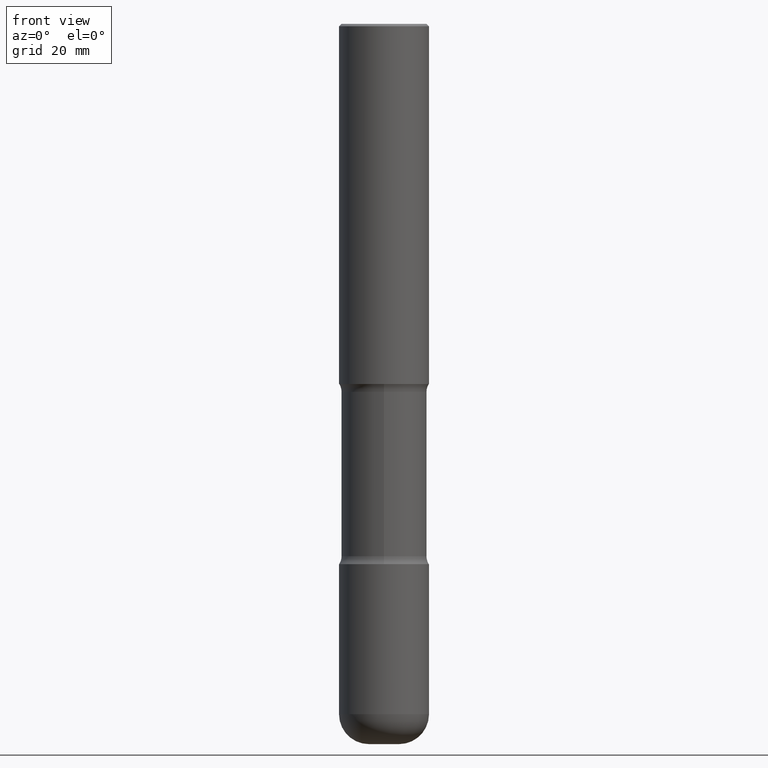
[diagram: clean part render]
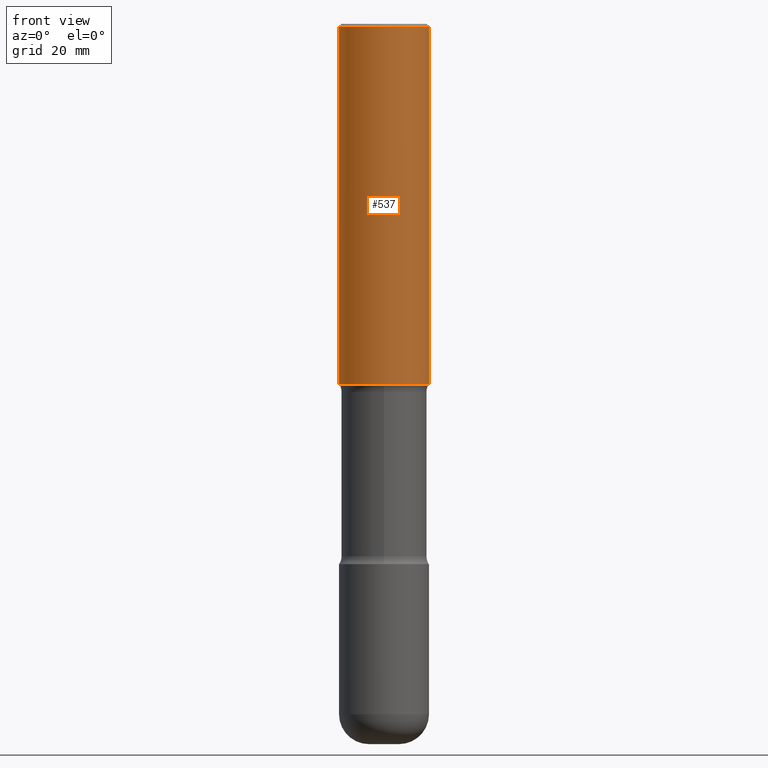
[diagram: same view with one face highlighted and labeled with its STEP entity id]
A machine part, front view. The second image highlights one B-rep face of the part: STEP entity #537.
In plain terms, the highlighted cylindrical surface (partial cylindrical patch) has radius 9.525 mm, axis along (-0, 0, 1).
Its self-contained STEP definition (entity closure, byte-faithful):
#3 = CARTESIAN_POINT ( 'NONE',  ( 4.890937612370289799E-31, -6.982962677686315028E-17, -0.02000000000000006981 ) ) ;
#13 = VERTEX_POINT ( 'NONE', #255 ) ;
#25 = AXIS2_PLACEMENT_3D ( 'NONE', #3, #217, #211 ) ;
#28 = CARTESIAN_POINT ( 'NONE',  ( 7.336406418555407548E-29, -1.047444401652943320E-14, -2.999999999999999112 ) ) ;
#32 = DIRECTION ( 'NONE',  ( 1.000000000000000000, -6.982962677686265922E-15, 0.000000000000000000 ) ) ;
#40 = AXIS2_PLACEMENT_3D ( 'NONE', #28, #501, #32 ) ;
#66 = FACE_OUTER_BOUND ( 'NONE', #238, .T. ) ;
#77 = VECTOR ( 'NONE', #159, 39.37007874015748143 ) ;
#87 = VERTEX_POINT ( 'NONE', #202 ) ;
#112 = EDGE_CURVE ( 'NONE', #13, #87, #530, .T. ) ;
#147 = AXIS2_PLACEMENT_3D ( 'NONE', #456, #504, #406 ) ;
#152 = LINE ( 'NONE', #325, #77 ) ;
#159 = DIRECTION ( 'NONE',  ( -2.445468806185136877E-29, 3.491481338843145188E-15, 1.000000000000000000 ) ) ;
#202 = CARTESIAN_POINT ( 'NONE',  ( 0.3750000000000003886, -1.309305502066178637E-14, -2.999999999999999112 ) ) ;
#211 = DIRECTION ( 'NONE',  ( 1.000000000000000000, -6.982962677686265922E-15, 0.000000000000000000 ) ) ;
#217 = DIRECTION ( 'NONE',  ( -2.445468806185136597E-29, 3.491481338843145583E-15, 1.000000000000000000 ) ) ;
#238 = EDGE_LOOP ( 'NONE', ( #408, #543, #315, #387 ) ) ;
#255 = CARTESIAN_POINT ( 'NONE',  ( -0.3750000000000003886, -2.607601562552767029E-15, -2.999999999999999112 ) ) ;
#263 = EDGE_CURVE ( 'NONE', #13, #340, #511, .T. ) ;
#269 = EDGE_CURVE ( 'NONE', #340, #283, #295, .T. ) ;
#281 = VECTOR ( 'NONE', #308, 39.37007874015748143 ) ;
#283 = VERTEX_POINT ( 'NONE', #555 ) ;
#295 = CIRCLE ( 'NONE', #25, 0.3750000000000001110 ) ;
#308 = DIRECTION ( 'NONE',  ( -2.445468806185136877E-29, 3.491481338843145188E-15, 1.000000000000000000 ) ) ;
#314 = CARTESIAN_POINT ( 'NONE',  ( -0.3750000000000001110, 2.548781377355487113E-15, -0.02000000000000006981 ) ) ;
#315 = ORIENTED_EDGE ( 'NONE', *, *, #526, .T. ) ;
#325 = CARTESIAN_POINT ( 'NONE',  ( 0.3750000000000002220, -2.618611004132351594E-15, 1.828566290923477043E-29 ) ) ;
#340 = VERTEX_POINT ( 'NONE', #314 ) ;
#385 = CARTESIAN_POINT ( 'NONE',  ( -0.3750000000000002220, 2.664535259100377275E-15, -1.844600658845590719E-29 ) ) ;
#387 = ORIENTED_EDGE ( 'NONE', *, *, #269, .F. ) ;
#406 = DIRECTION ( 'NONE',  ( 1.000000000000000000, -6.982962677686266711E-15, 4.876176775795935793E-29 ) ) ;
#408 = ORIENTED_EDGE ( 'NONE', *, *, #263, .F. ) ;
#456 = CARTESIAN_POINT ( 'NONE',  ( 0.000000000000000000, 0.000000000000000000, 0.000000000000000000 ) ) ;
#499 = CYLINDRICAL_SURFACE ( 'NONE', #147, 0.3750000000000002220 ) ;
#501 = DIRECTION ( 'NONE',  ( -2.445468806185136597E-29, 3.491481338843145583E-15, 1.000000000000000000 ) ) ;
#504 = DIRECTION ( 'NONE',  ( -2.445468806185136597E-29, 3.491481338843145583E-15, 1.000000000000000000 ) ) ;
#511 = LINE ( 'NONE', #385, #281 ) ;
#526 = EDGE_CURVE ( 'NONE', #87, #283, #152, .T. ) ;
#530 = CIRCLE ( 'NONE', #40, 0.3750000000000003886 ) ;
#537 = ADVANCED_FACE ( 'NONE', ( #66 ), #499, .T. ) ;
#543 = ORIENTED_EDGE ( 'NONE', *, *, #112, .T. ) ;
#555 = CARTESIAN_POINT ( 'NONE',  ( 0.3750000000000001110, -2.642516375941188423E-15, -0.02000000000000006981 ) ) ;